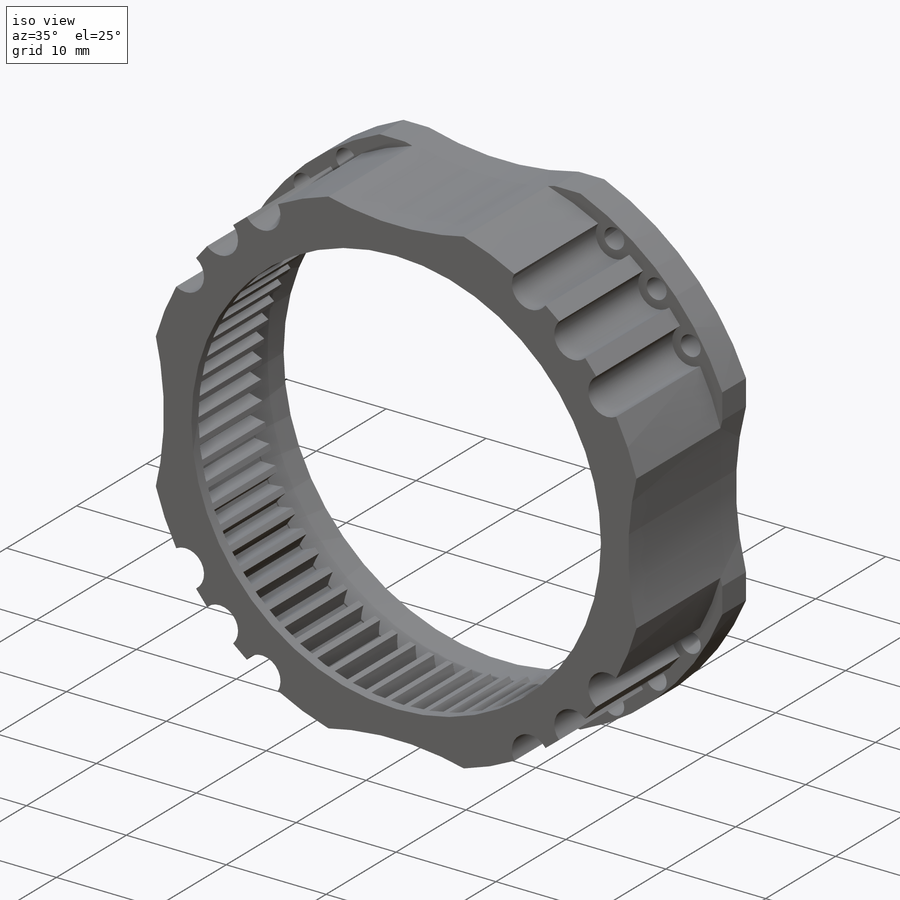
[diagram: iso view]
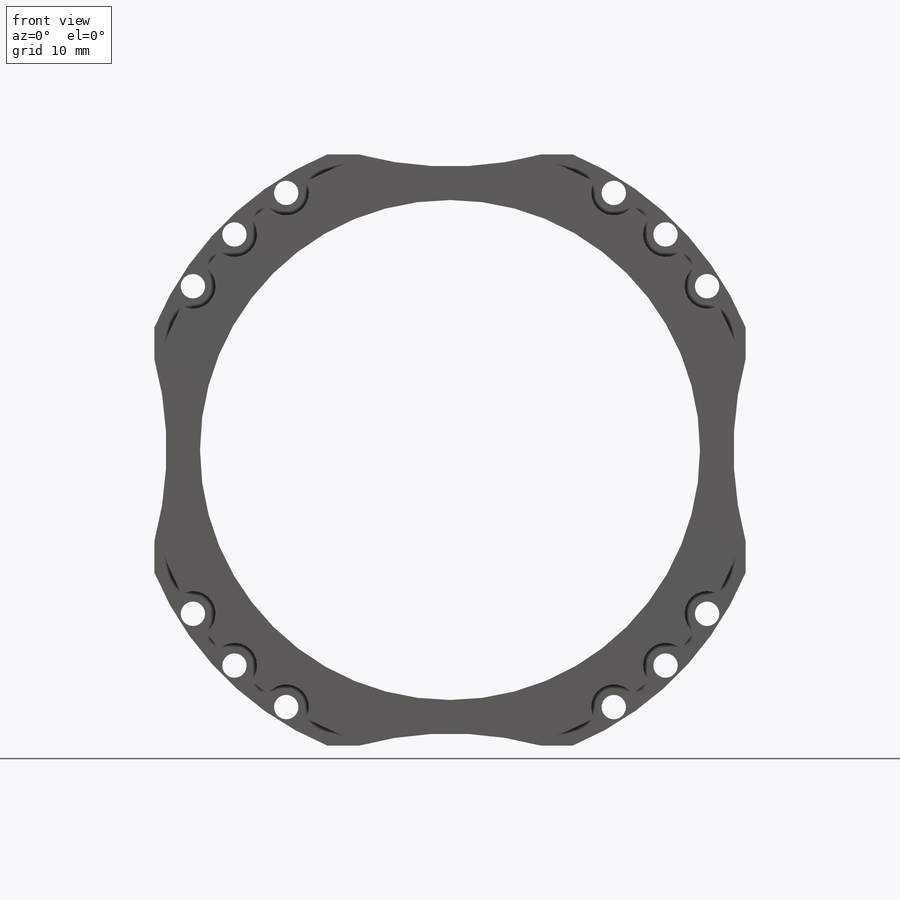
[diagram: front view]
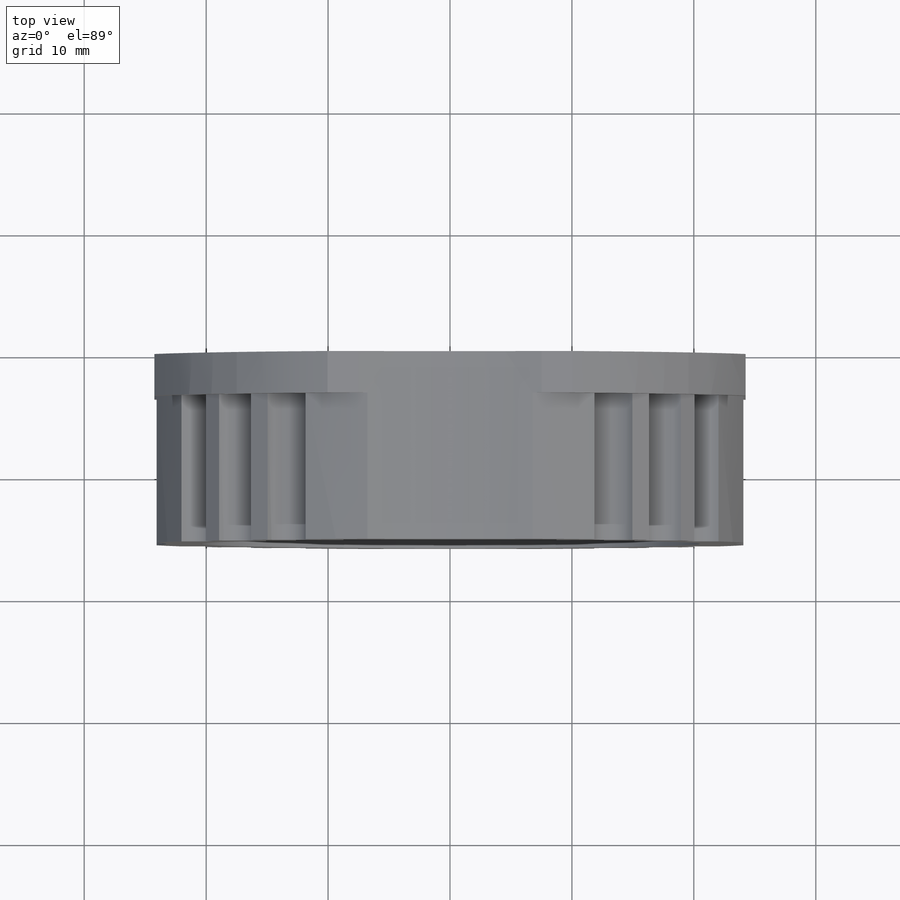
[diagram: top view]
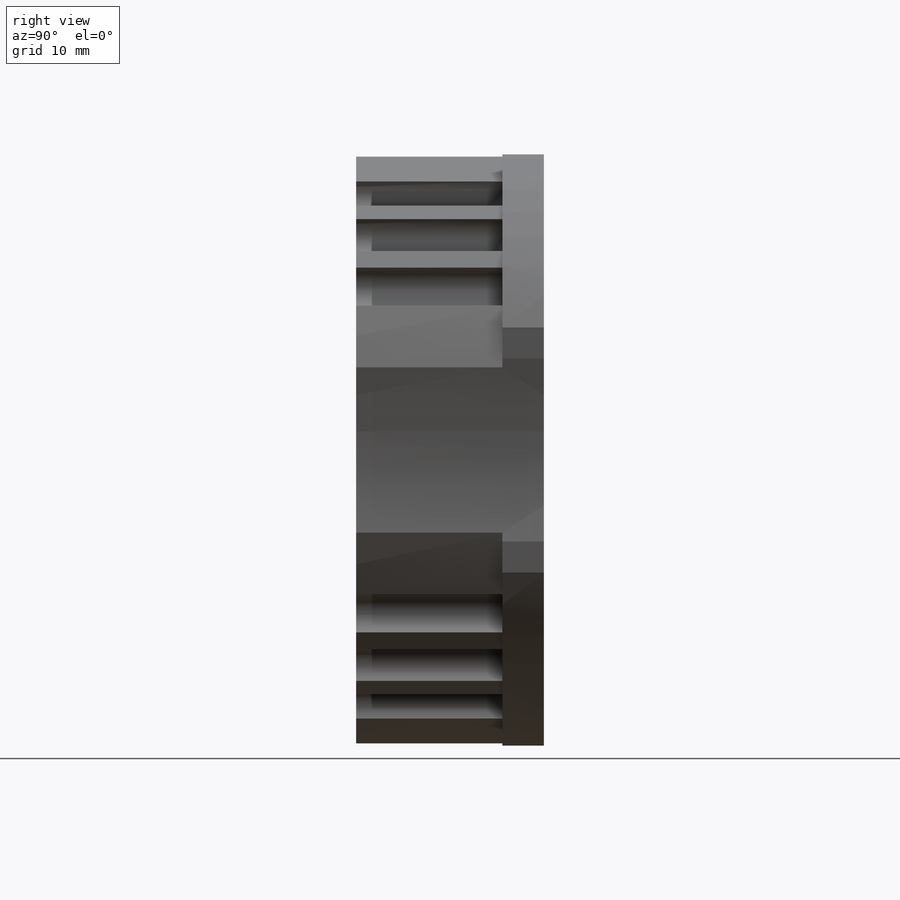
[diagram: right view]
SOLIDWORKS PART (.sldprt)
format: sldprt  version: not decoded by parser v0  size: 978,944 bytes
history: native  units: mm
features: sketch x8, cut_extrude x5, extrude x3, pattern_circular x3, material x1, plane x1 (+17 scaffold rows collapsed; 1 parser-record rows omitted)
feature tree (39):
  scaffold x17  (default folders/planes/origin — collapsed)
  material  "Custom Plastic"
  sketch  "Gear-BaseSketch"  dims[c1.D1=52.5mm c1.D2=~41.586941mm c1.D3=26.5mm c2.D3=45.0deg c2.D4=24.25mm]
  extrude  "0.6207 Module, 42.8283mm P.D."  Depth=9.4mm
  sketch  "Tooth-Sketch; Backlash: 0.0000mm"
  cut_extrude  "Tooth-Cut, Coarse Pitch Involute 20 deg"  [1 undecoded]
  pattern_circular  "Tooth Pattern, 69 / 69"  Count=69 Angle=5.217391deg
  sketch  "Sketch2"  dims[D1=44.1mm]
  extrude  "Boss-Extrude1"  Depth=5mm
  sketch  "Sketch7"  dims[D2=41.0mm D1=0.0mm]
  extrude  "Boss-Extrude2"  Depth=1mm
  plane  "Plane1"  Offset=3.4mm
  sketch  "Sketch6"  dims[c1.D5=70.0mm c1.D2=15.0mm c1.D3=1.0mm c1.D1=0.0mm c2.D1=4.0]
  cut_extrude  "Sensor Channel"  [1 undecoded]
  parser-record x1  (decoder bookkeeping rows leaked as tree rows — omitted from the tree; the rows remain in map.json)
  sketch  "Sketch3"  dims[c1.D1=50.0mm c1.D2=2.0mm c1.D3=25.0mm c2.D3=32.5deg]
  cut_extrude  "Cut-Extrude1"  [1 undecoded]
  sketch  "Sketch4"  dims[D1=3.7mm]
  cut_extrude  "Cut-Extrude2"  [1 undecoded]
  pattern_circular  "CirPattern1"  Count=3 Angle=25deg
  pattern_circular  "CirPattern2"  Count=4 Angle=360deg
  sketch  "Sketch5"
  cut_extrude  "Cut-Extrude3"  [1 undecoded]
decode coverage: 12 of 19 modeling features carry decoded parameters
note: ~ marks probable driven/reference dimensions
note: 5 parameter values undecoded
summary: no parameter record found for 5 features
note: suppression state not decoded; provenance and decode notes live in map.json
